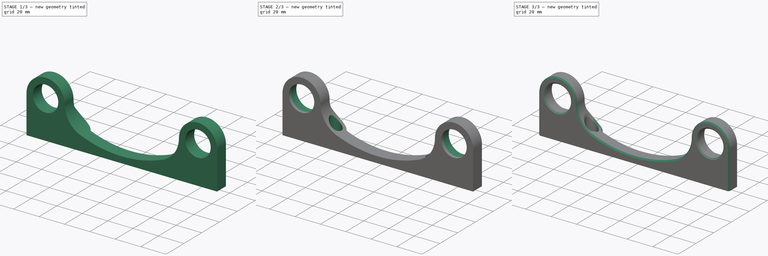
[diagram: build sequence overview — one tinted view per stage of 3, left to right]
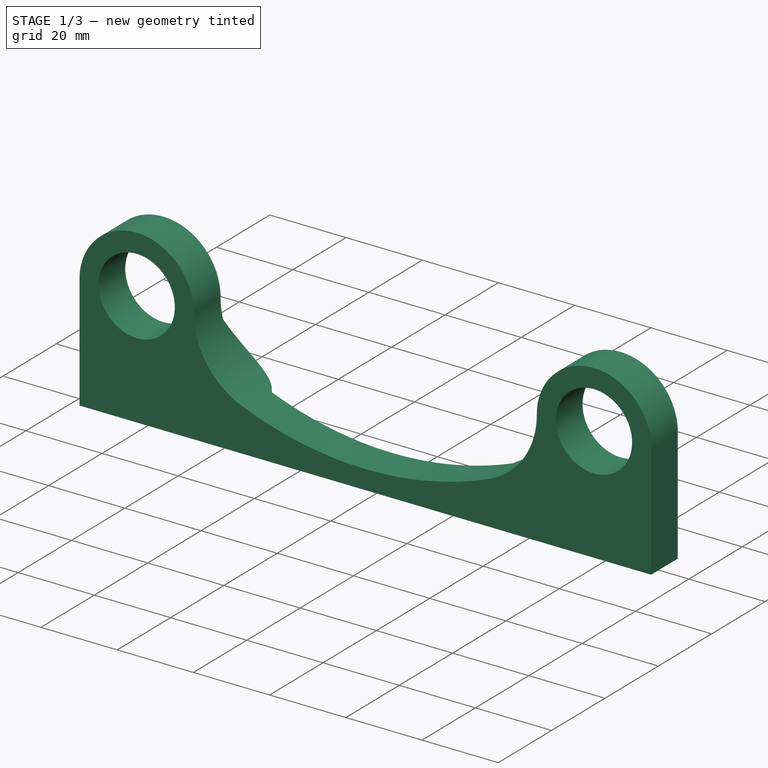
[diagram: stage 1 of 3 — iso view after this stage's code; geometry added in this stage tinted green]
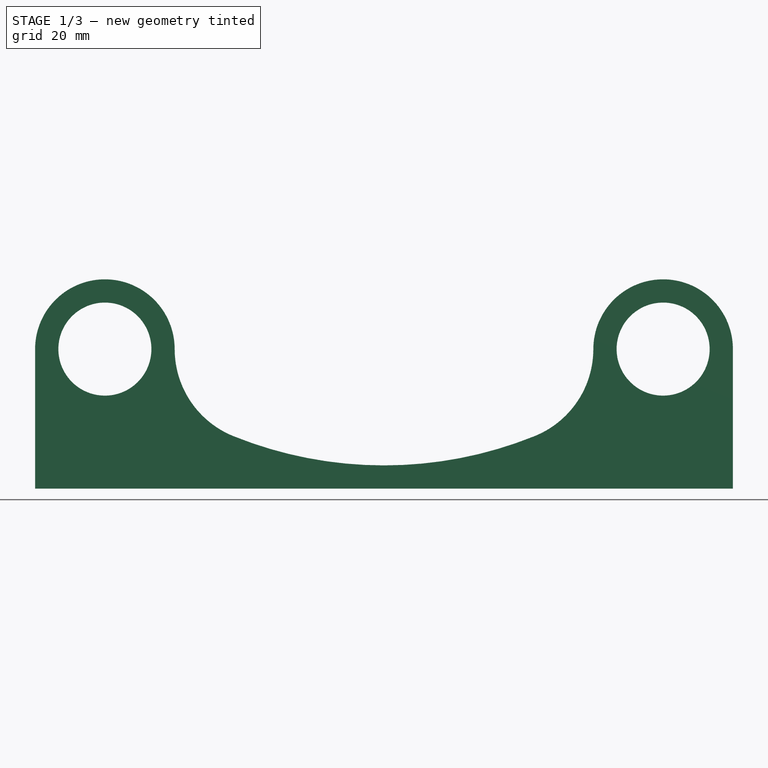
[diagram: stage 1 of 3 — front view after this stage's code; geometry added in this stage tinted green]
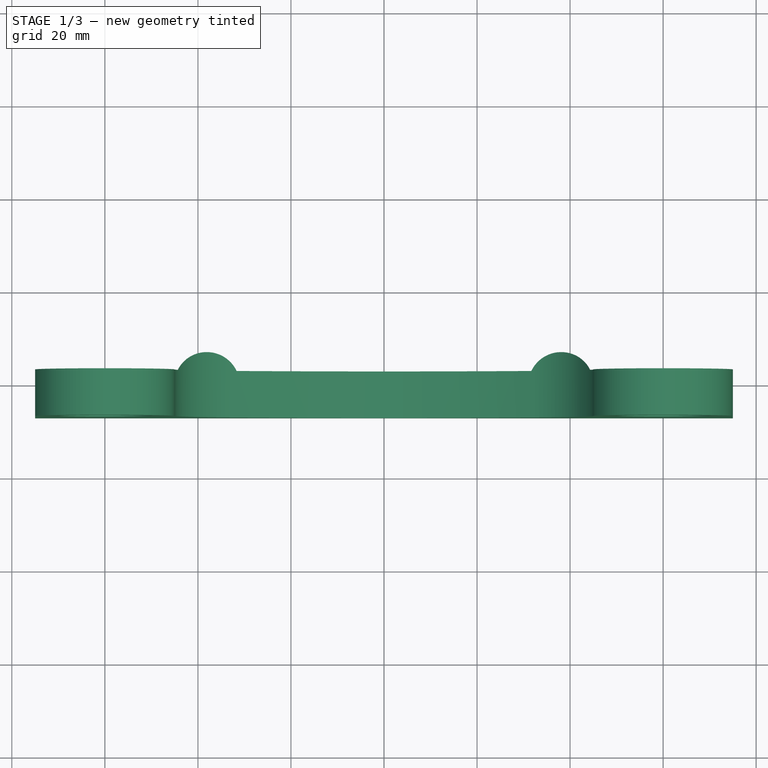
[diagram: stage 1 of 3 — top view after this stage's code; geometry added in this stage tinted green]
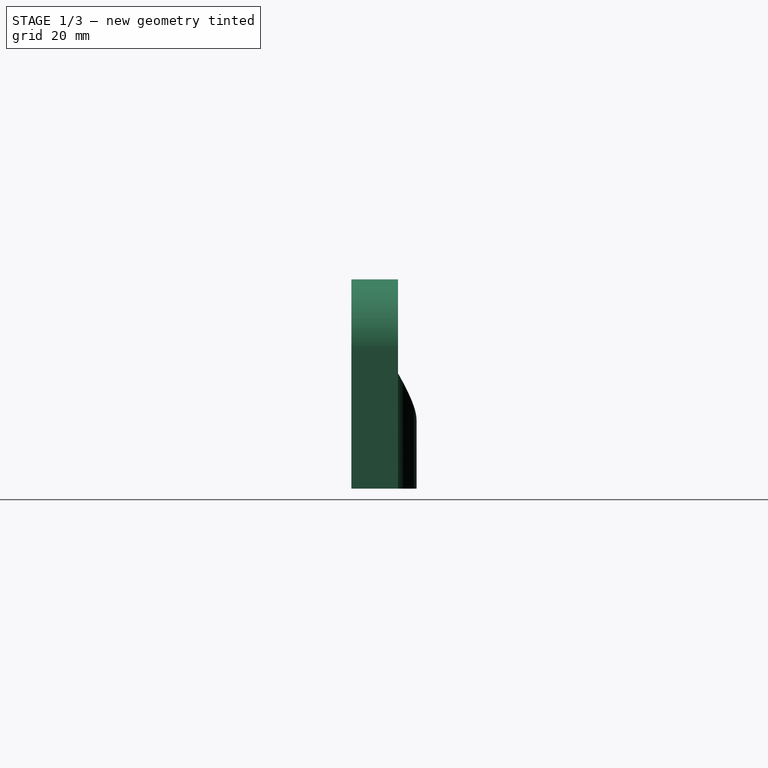
[diagram: stage 1 of 3 — right view after this stage's code; geometry added in this stage tinted green]
FCSTD DOCUMENT  (FreeCAD 0.20R29177 +426 (Git))
Label: _Bracket
License: Creative Commons Attribution
LicenseURL: http://creativecommons.org/licenses/by/4.0/
objects: Sketcher::SketchObject×4, PartDesign::Pocket×2, PartDesign::Chamfer×2, PartDesign::Pad×1, PartDesign::Hole×1, PartDesign::Fillet×1, PartDesign::Body×1
note: 19 computed .brp shape members not serialized (recipe doc carries the construction recipe); baked Part::Feature solids carry a one-line shape summary decoded from their .brp

FEATURE [Sketcher::SketchObject] Sketch
  FullyConstrained = true
  MapMode = 5
  Support = -> [XY_Plane]
  sketch-geometry (9):
    g0: LineSegment StartX=-75 StartY=3 StartZ=0 EndX=-75 EndY=-7 EndZ=0
    g1: LineSegment StartX=-75 StartY=-7 StartZ=0 EndX=75 EndY=-7 EndZ=0
    g2: LineSegment StartX=75 StartY=-7 StartZ=0 EndX=75 EndY=3 EndZ=0
    g3: LineSegment StartX=75 StartY=3 StartZ=0 EndX=44.3246 EndY=3 EndZ=0
    g4: ArcOfCircle CenterX=38 CenterY=0 CenterZ=0 NormalX=0 NormalY=0 NormalZ=1 AngleXU=0 Radius=7 StartAngle=0.442911 EndAngle=2.69868
    g5: LineSegment StartX=31.6754 StartY=3 StartZ=0 EndX=-31.6754 EndY=3 EndZ=0
    g6: ArcOfCircle CenterX=-38 CenterY=0 CenterZ=0 NormalX=0 NormalY=0 NormalZ=1 AngleXU=0 Radius=7 StartAngle=0.442911 EndAngle=2.69868
    g7: LineSegment StartX=-44.3246 StartY=3 StartZ=0 EndX=-75 EndY=3 EndZ=0
    g8: ArcOfCircle CenterX=-38 CenterY=0 CenterZ=0 NormalX=0 NormalY=0 NormalZ=1 AngleXU=0 Radius=7 StartAngle=2.69868 EndAngle=6.7261
  constraints (27):
    c: Vertical(g0)
    c: Coincident(g0,g1)
    c: Coincident(g1,g2)
    c: Vertical(g2)
    c: Coincident(g2,g3)
    c: Horizontal(g3)
    c: Horizontal(g5)
    c: Coincident(g7,g0)
    c: Horizontal(g7)
    c: Coincident(g6,g7)
    c: Coincident(g4,g3)
    c: Coincident(g5,g4)
    c: PointOnObject(g4,g-1)
    c: DistanceX(g1,g1) = 150
    c: Symmetric(g6,g4,g-2)
    c: Horizontal(g3,g4)
    c: DistanceX(g6,g4) = 76
    c: DistanceY(g0,g0) = 10
    c: Diameter(g4) = 14
    c: Coincident(g8,g6)
    c: Coincident(g8,g6)
    c: Tangent(g8,g1)
    c: Coincident(g5,g6)
    c: Equal(g4,g6)
    c: Coincident(g5,g8)
    c: Equal(g0,g2)
    c: Symmetric(g0,g1,g-2)
FEATURE [PartDesign::Pad] Pad
  Direction = (0,0,1)
  Length = 46
  Length2 = 10
  Profile = -> Sketch
  ReferenceAxis = -> Sketch [N_Axis]
  Type = 0
FEATURE [Sketcher::SketchObject] Sketch001
  FullyConstrained = true
  MapMode = 5
  Placement = pos=(0,0,0) rot=(1,0,0;1.5708rad)
  Support = -> [XZ_Plane]
  sketch-geometry (16):
    g0: ArcOfCircle CenterX=-60 CenterY=30 CenterZ=0 NormalX=0 NormalY=0 NormalZ=1 AngleXU=0 Radius=15 StartAngle=2e-16 EndAngle=3.14159
    g1: ArcOfCircle CenterX=60 CenterY=30 CenterZ=0 NormalX=0 NormalY=0 NormalZ=1 AngleXU=0 Radius=15 StartAngle=0 EndAngle=3.14159
    g2: ArcOfCircle CenterX=0 CenterY=91.4 CenterZ=0 NormalX=0 NormalY=0 NormalZ=1 AngleXU=0 Radius=86.4 StartAngle=4.32808 EndAngle=5.09669
    g3: LineSegment StartX=-75 StartY=30 StartZ=0 EndX=-75 EndY=0 EndZ=0
    g4: LineSegment StartX=-75 StartY=0 StartZ=0 EndX=75 EndY=0 EndZ=0
    g5: LineSegment StartX=75 StartY=0 StartZ=0 EndX=75 EndY=30 EndZ=0
    g6: ArcOfCircle CenterX=-24.8309 CenterY=30 CenterZ=0 NormalX=0 NormalY=0 NormalZ=1 AngleXU=0 Radius=20.1691 StartAngle=3.14159 EndAngle=4.32808
    g7: ArcOfCircle CenterX=24.8309 CenterY=30 CenterZ=0 NormalX=0 NormalY=0 NormalZ=1 AngleXU=0 Radius=20.1691 StartAngle=5.09669 EndAngle=6.28319
    g8: Circle CenterX=-60 CenterY=30 CenterZ=0 NormalX=0 NormalY=0 NormalZ=1 AngleXU=0 Radius=10
    g9: Circle CenterX=60 CenterY=30 CenterZ=0 NormalX=0 NormalY=0 NormalZ=1 AngleXU=0 Radius=10
    g10: LineSegment StartX=0 StartY=5 StartZ=0 EndX=0 EndY=0 EndZ=0
    g11: GeomPoint X=-60 Y=45 Z=0
    g12: LineSegment StartX=-83 StartY=52 StartZ=0 EndX=83 EndY=52 EndZ=0
    g13: LineSegment StartX=83 StartY=52 StartZ=0 EndX=83 EndY=-6 EndZ=0
    g14: LineSegment StartX=83 StartY=-6 StartZ=0 EndX=-83 EndY=-6 EndZ=0
    g15: LineSegment StartX=-83 StartY=-6 StartZ=0 EndX=-83 EndY=52 EndZ=0
  constraints (43):
    c: Radius(g0) = 15
    c: Equal(g0,g1)
    c: Symmetric(g1,g0,g-2)
    c: PointOnObject(g2,g-2)
    c: Vertical(g3)
    c: Coincident(g3,g4)
    c: Horizontal(g4)
    c: Coincident(g4,g5)
    c: Vertical(g5)
    c: Tangent(g1,g7) = 1.5708
    c: Tangent(g7,g2) = -1.5708
    c: Tangent(g0,g6) = 1.5708
    c: Tangent(g6,g2) = -1.5708
    c: Tangent(g0,g3) = -1.5708
    c: Tangent(g5,g1) = -1.5708
    c: Equal(g6,g7)
    c: Coincident(g8,g0)
    c: Diameter(g8) = 20
    c: Coincident(g9,g1)
    c: Equal(g8,g9)
    c: DistanceX(g4,g4) = 150
    c: PointOnObject(g10,g2)
    c: PointOnObject(g10,g4)
    c: Vertical(g10)
    c: DistanceY(g10,g10) = 5
    c: DistanceX(g0,g1) = 120
    c: PointOnObject(g11,g0)
    c: Vertical(g0,g11)
    c: DistanceY(g4,g2) = 91.4
    c: Coincident(g10,g-1)
    c: Coincident(g12,g13)
    c: Coincident(g13,g14)
    c: Coincident(g14,g15)
    c: Coincident(g15,g12)
    c: Horizontal(g12)
    c: Vertical(g13)
    c: Vertical(g15)
    c: Symmetric(g14,g13,g-2)
    c: DistanceX(g14,g14) = 166
    c: DistanceY(g14,g3) = 6
    c: DistanceY(g15,g15) = 58
    c: DistanceY(g4,g1) = 30
    c: Horizontal(g1,g1)
FEATURE [PartDesign::Pocket] Pocket
  BaseFeature = -> Pad
  Direction = (0,1,2e-16)
  Length = 5
  Length2 = 5
  Midplane = true
  Profile = -> Sketch001
  ReferenceAxis = -> Sketch001 [N_Axis]
  Type = 1
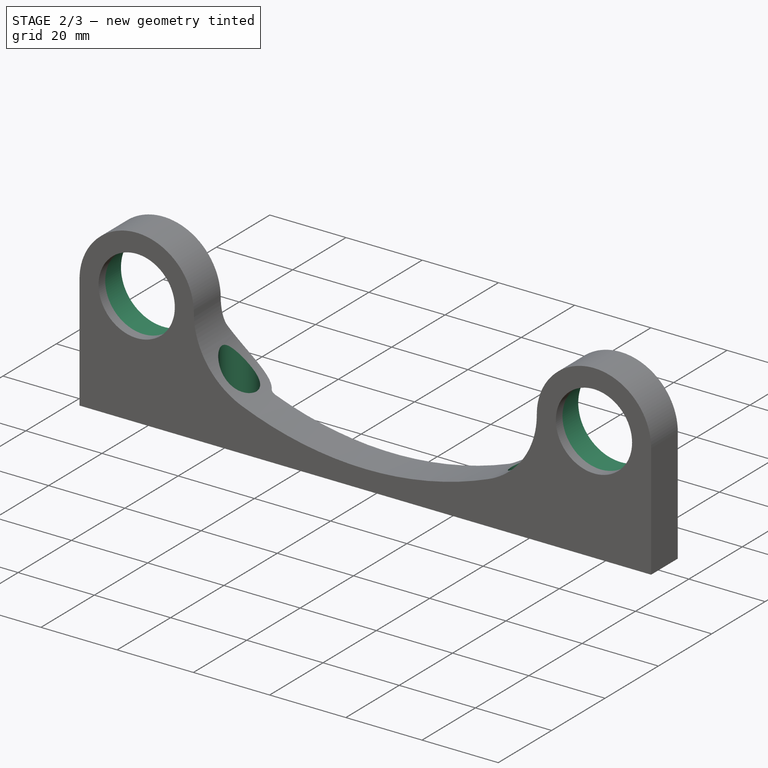
[diagram: stage 2 of 3 — iso view after this stage's code; geometry added in this stage tinted green]
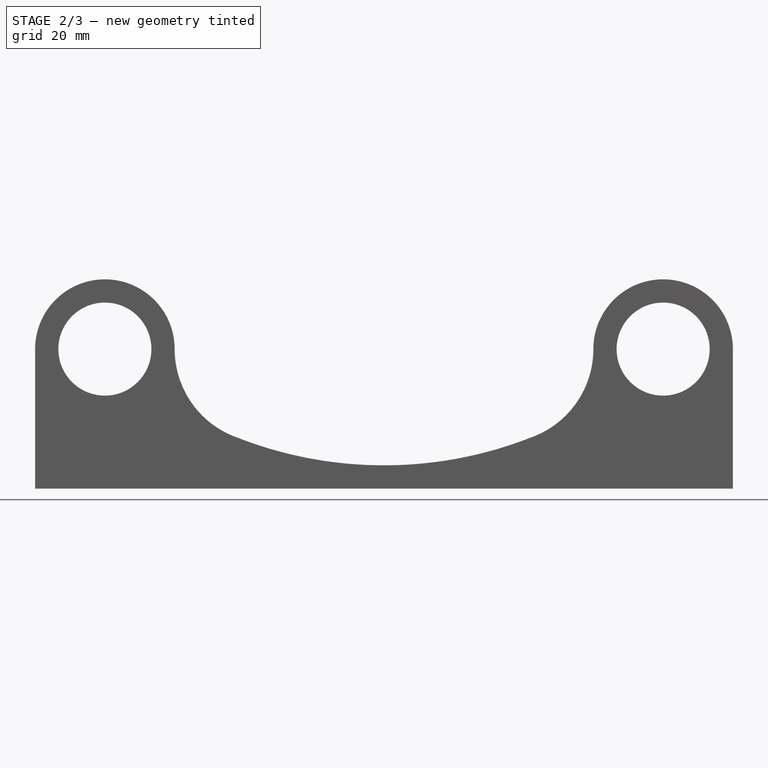
[diagram: stage 2 of 3 — front view after this stage's code; geometry added in this stage tinted green]
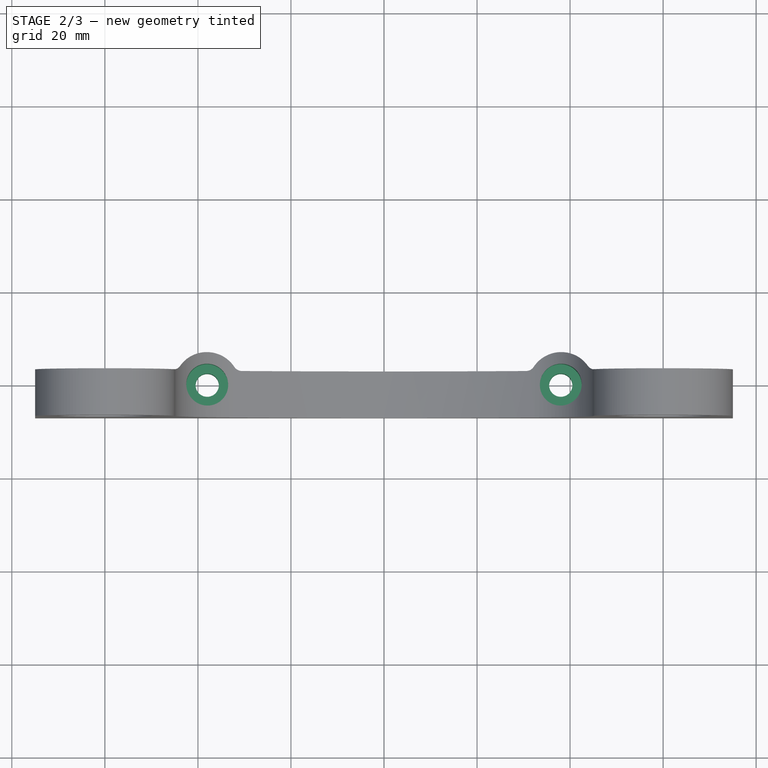
[diagram: stage 2 of 3 — top view after this stage's code; geometry added in this stage tinted green]
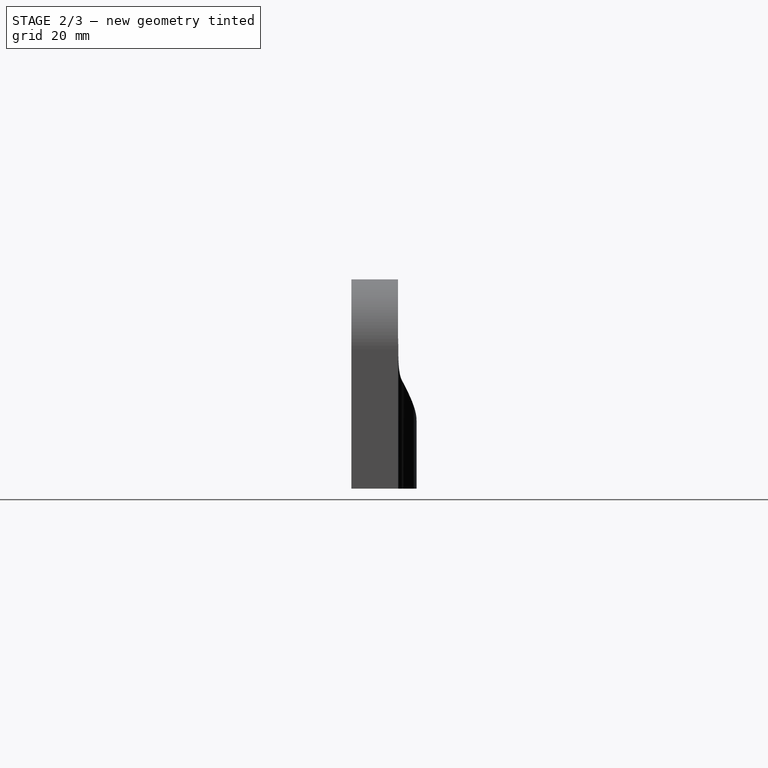
[diagram: stage 2 of 3 — right view after this stage's code; geometry added in this stage tinted green]
FEATURE [Sketcher::SketchObject] Sketch002
  AttachmentOffset = pos=(0,0,22) rot=(0,0,1;0rad)
  FullyConstrained = true
  MapMode = 5
  Placement = pos=(0,0,22) rot=(0,0,1;0rad)
  Support = -> [XY_Plane]
  expr: Constraints[2] = Sketch.Constraints[16]
  sketch-geometry (2):
    g0: Circle CenterX=-38 CenterY=0 CenterZ=0 NormalX=0 NormalY=0 NormalZ=1 AngleXU=0 Radius=4.5
    g1: Circle CenterX=38 CenterY=0 CenterZ=0 NormalX=0 NormalY=0 NormalZ=1 AngleXU=0 Radius=4.5
  constraints (5):
    c: PointOnObject(g0,g-1)
    c: Symmetric(g1,g0,g-2)
    c: DistanceX(g0,g1) = 76
    c: Diameter(g1) = 9
    c: Equal(g1,g0)
FEATURE [PartDesign::Hole] Hole
  BaseFeature = -> Pocket
  CustomThreadClearance = 0
  Depth = 25
  DepthType = 0
  Diameter = 5
  DrillForDepth = false
  DrillPoint = 1
  DrillPointAngle = 118
  HoleCutCountersinkAngle = 90
  HoleCutCustomValues = false
  HoleCutDepth = 14
  HoleCutDiameter = 9
  HoleCutType = 1
  ModelThread = false
  Profile = -> Sketch002
  Tapered = false
  TaperedAngle = 90
  ThreadClass = 0
  ThreadDepth = 25
  ThreadDepthType = 0
  ThreadDirection = 0
  ThreadFit = 0
  ThreadSize = 0
  ThreadType = 0
  Threaded = false
  UseCustomThreadClearance = false
FEATURE [Sketcher::SketchObject] Sketch003
  AttachmentOffset = pos=(0,0,-3) rot=(0,0,1;0rad)
  ExternalGeometry = -> [Sketch001]
  FullyConstrained = true
  MapMode = 5
  Placement = pos=(0,3,7e-16) rot=(1,0,0;1.5708rad)
  Support = -> [XZ_Plane]
  expr: .AttachmentOffset.Base.z = -(Sketch.Constraints[17] - Sketch.Constraints[18] / 2)
  sketch-geometry (2):
    g0: Circle CenterX=-60 CenterY=30 CenterZ=0 NormalX=0 NormalY=0 NormalZ=1 AngleXU=0 Radius=11.125
    g1: Circle CenterX=60 CenterY=30 CenterZ=0 NormalX=0 NormalY=0 NormalZ=1 AngleXU=0 Radius=11.125
  constraints (4):
    c: Coincident(g0,g-3)
    c: Coincident(g1,g-4)
    c: Equal(g1,g0)
    c: Diameter(g1) = 22.25
FEATURE [PartDesign::Pocket] Pocket001
  BaseFeature = -> Hole
  Direction = (0,1,2e-16)
  Length = 7.5
  Length2 = 5
  Profile = -> Sketch003
  ReferenceAxis = -> Sketch003 [N_Axis]
  Reversed = true
  Type = 0
FEATURE [PartDesign::Fillet] Fillet
  Base = -> Pocket001 [Edge33,Edge34,Edge29,Edge24]
  BaseFeature = -> Pocket001
  Radius = 2
  SupportTransform = false
  UseAllEdges = false
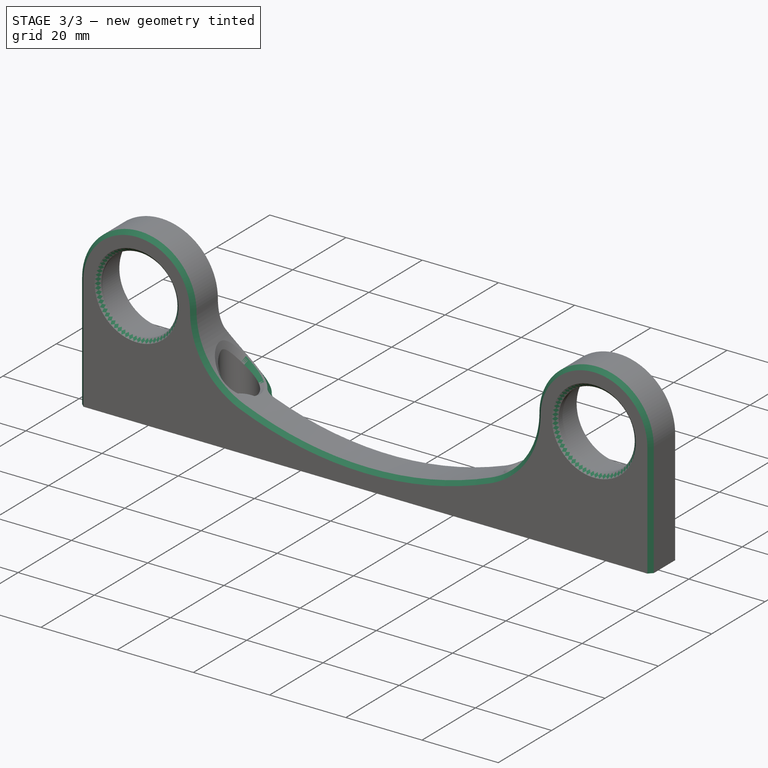
[diagram: stage 3 of 3 — iso view after this stage's code; geometry added in this stage tinted green]
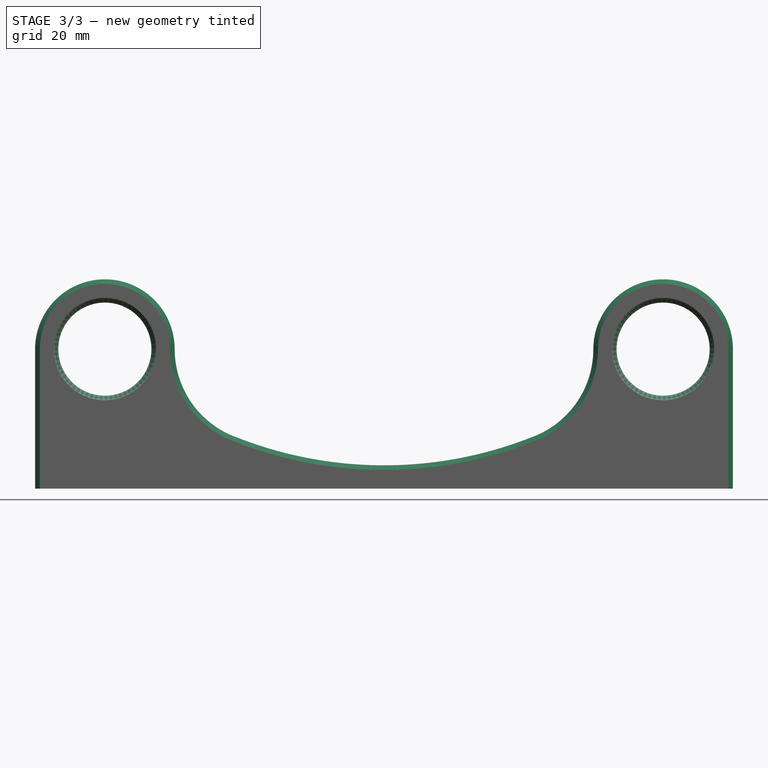
[diagram: stage 3 of 3 — front view after this stage's code; geometry added in this stage tinted green]
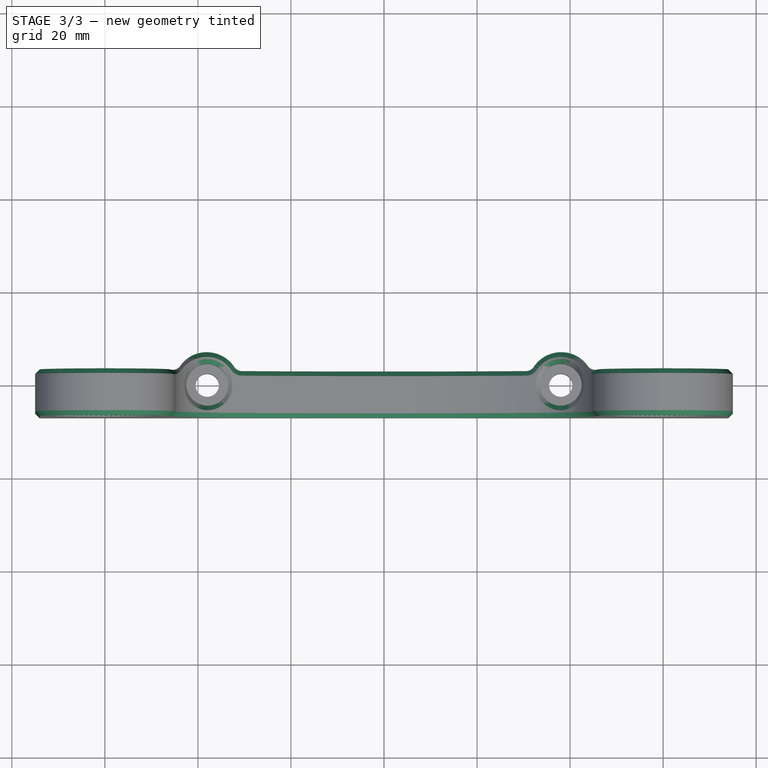
[diagram: stage 3 of 3 — top view after this stage's code; geometry added in this stage tinted green]
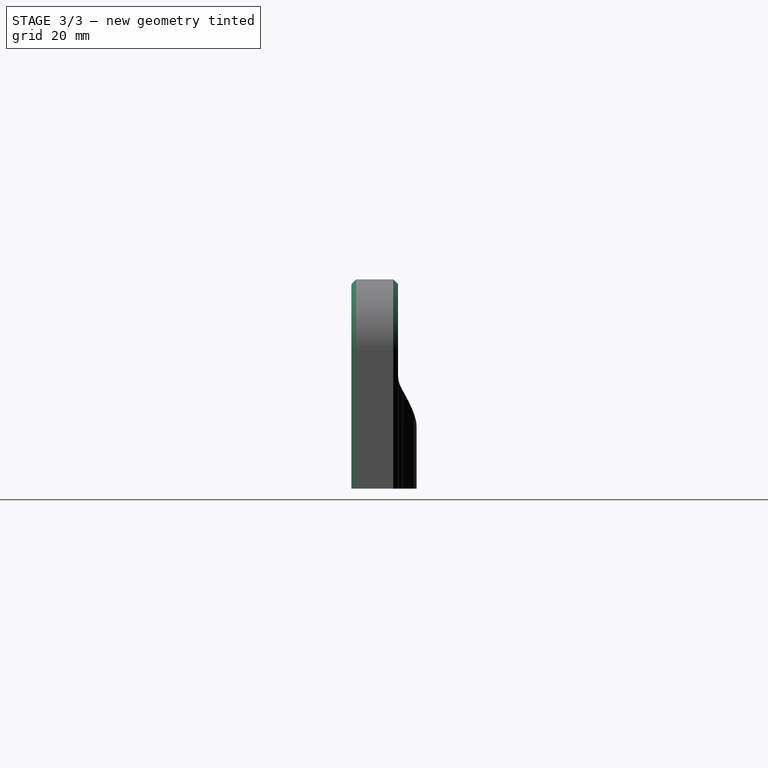
[diagram: stage 3 of 3 — right view after this stage's code; geometry added in this stage tinted green]
FEATURE [PartDesign::Chamfer] Chamfer
  Angle = 45
  Base = -> Fillet [Edge27,Edge28,Edge29,Edge30,Edge31,Edge32,Edge22,Edge33,Edge34,Edge68,Edge67,Edge62,Edge64,Edge59,Edge65,Edge37,Edge42]
  BaseFeature = -> Fillet
  ChamferType = 0
  FlipDirection = false
  Size = 1
  Size2 = 1
  SupportTransform = false
  UseAllEdges = false
FEATURE [PartDesign::Chamfer] Chamfer001
  Angle = 45
  Base = -> Chamfer [Edge62,Edge23]
  BaseFeature = -> Chamfer
  ChamferType = 0
  FlipDirection = false
  Size = 0.6
  Size2 = 1
  SupportTransform = false
  UseAllEdges = false
FEATURE [PartDesign::Body] Body  label="Bracket"
  Group = -> [Sketch,Pad,Sketch001,Pocket,Sketch002,Hole,Sketch003,Pocket001,Fillet,Chamfer,Chamfer001]
  Origin = -> Origin
  Tip = -> Chamfer001
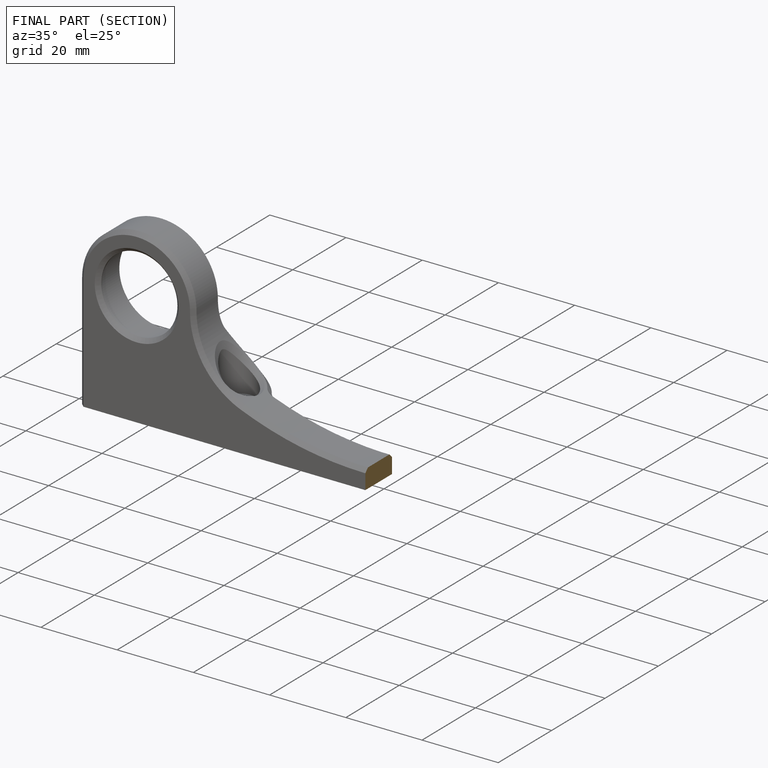
[diagram: finished part — half-section view (interior)]
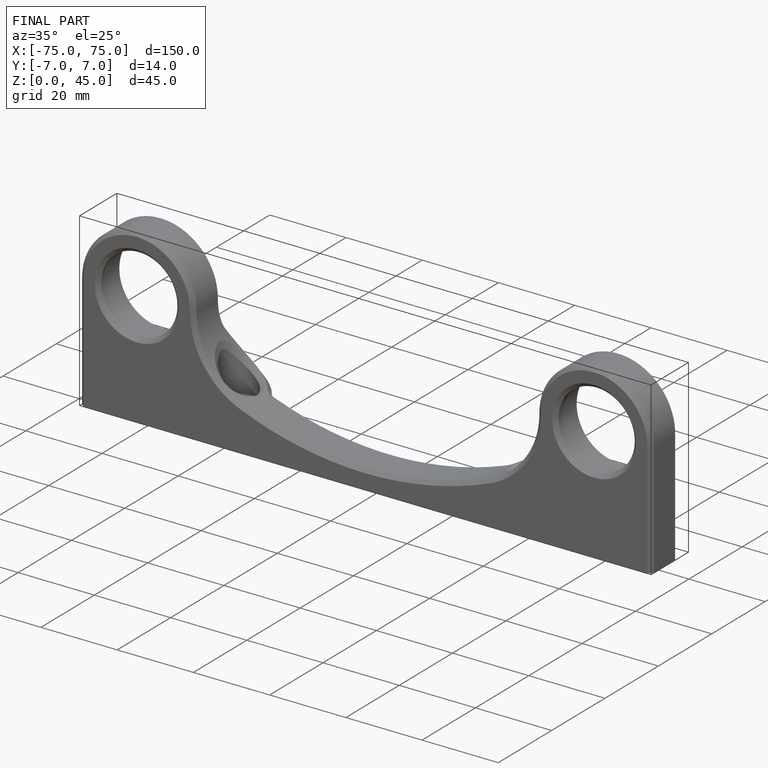
[diagram: finished part — iso view with bounding-box wireframe]
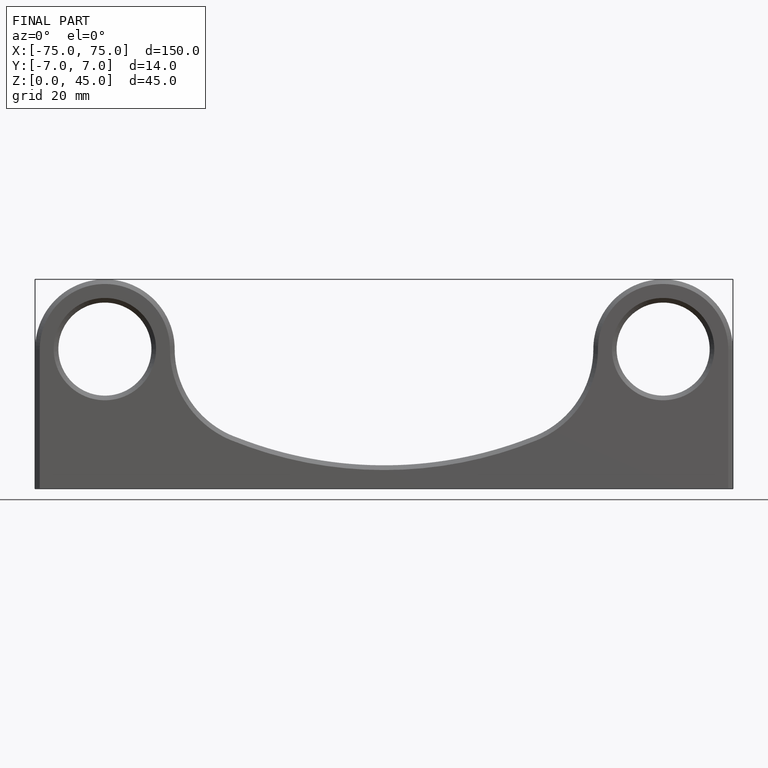
[diagram: finished part — front view with bounding-box wireframe]
